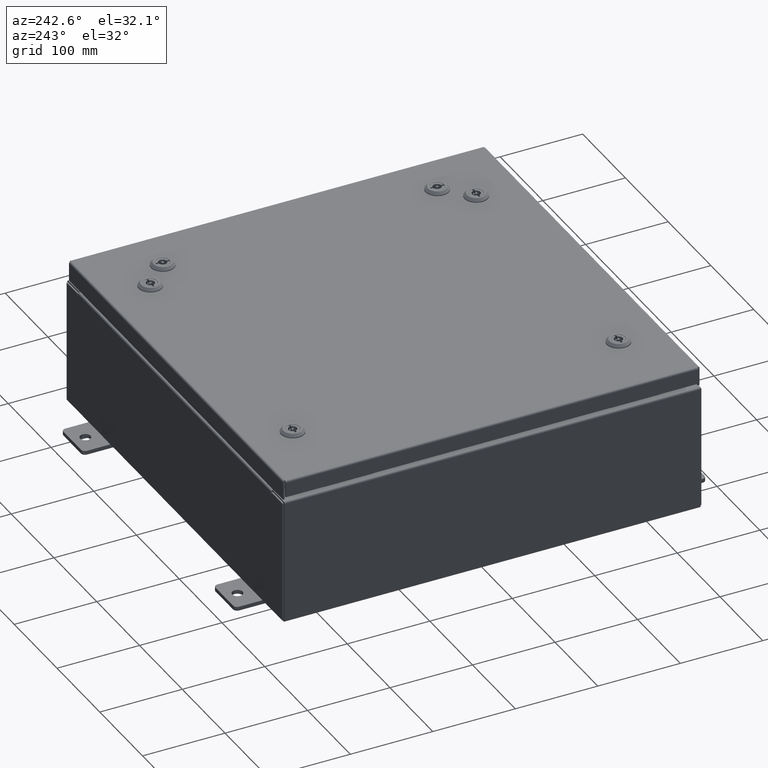
[diagram: clean part render]
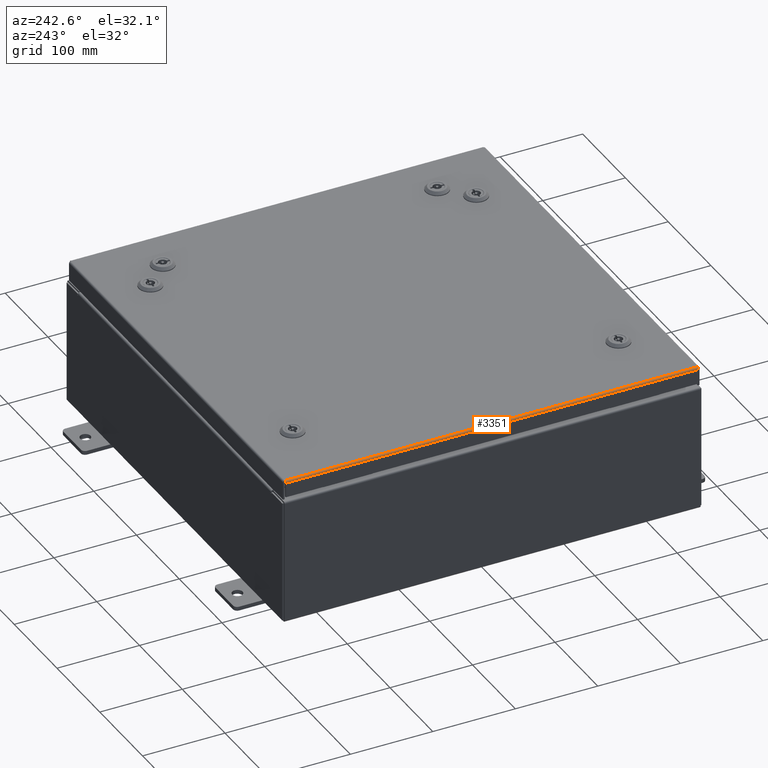
[diagram: same view with one face highlighted and labeled with its STEP entity id]
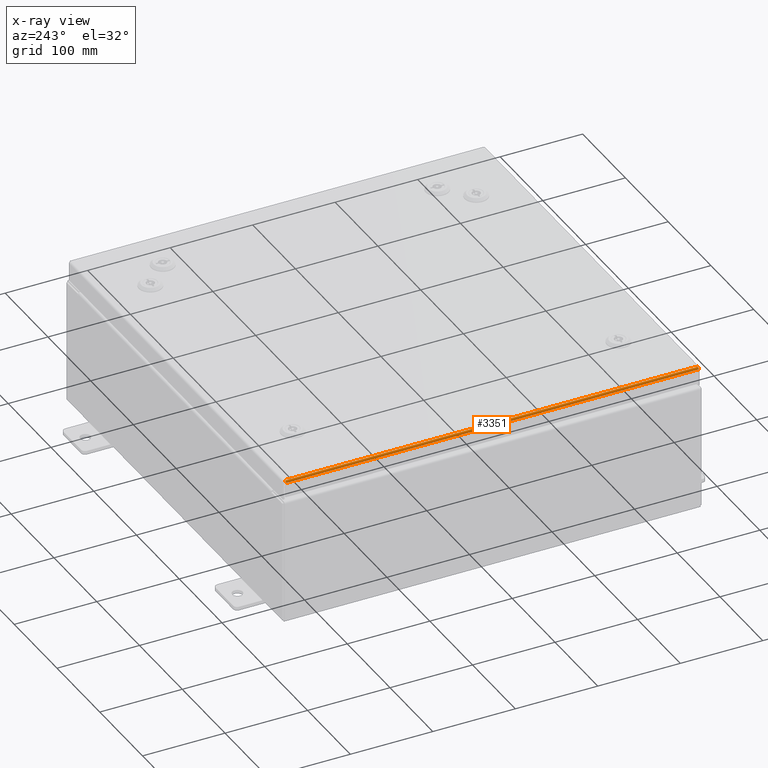
[diagram: x-ray of the same camera — body ghosted, the highlighted face saturated]
A machine part, auxiliary view. The second image highlights one B-rep face of the part: STEP entity #3351.
The next image is the same camera in x-ray: the body ghosted, the highlighted face saturated — about 0% of this face is hidden behind the body in this view.
In plain terms, the highlighted cylindrical surface (edge-blend (fillet) strip) has radius 2.2276 mm, axis along (0, 1, 0).
Its self-contained STEP definition (entity closure, byte-faithful):
#213 = CARTESIAN_POINT ( 'NONE',  ( -9.849800000000001900, 9.849799999999996600, -0.08770000000000036100 ) ) ;
#3351 = ADVANCED_FACE ( 'NONE', ( #33414 ), #45022, .T. ) ;
#3494 = CARTESIAN_POINT ( 'NONE',  ( -9.893967384578527200, 9.849419288125421400, -0.01106893374133366800 ) ) ;
#4638 = LINE ( 'NONE', #48779, #29277 ) ;
#4957 = DIRECTION ( 'NONE',  ( 1.099611771034679600E-016, -1.000000000000000000, -4.554220009055657300E-045 ) ) ;
#7468 = VERTEX_POINT ( 'NONE', #26355 ) ;
#8254 = CARTESIAN_POINT ( 'NONE',  ( -9.937499999999994700, 9.848753042344910100, -0.07622009684500738500 ) ) ;
#8466 = CARTESIAN_POINT ( 'NONE',  ( -9.861279903154994000, 9.849704822031354100, -2.441389057814461800E-015 ) ) ;
#8855 = EDGE_CURVE ( 'NONE', #56634, #7468, #55142, .T. ) ;
#12534 = ORIENTED_EDGE ( 'NONE', *, *, #35481, .T. ) ;
#14763 = B_SPLINE_CURVE_WITH_KNOTS ( 'NONE', 3,
 ( #52573, #8254, #57372, #28018, #62172, #32996, #3494, #38000, #8466, #42930 ),
 .UNSPECIFIED., .F., .F.,
 ( 4, 2, 2, 2, 4 ),
 ( 0.0000000000000000000, 0.2500000000000000000, 0.5000000000000000000, 0.7500000000000000000, 1.000000000000000000 ),
 .UNSPECIFIED. ) ;
#17278 = EDGE_LOOP ( 'NONE', ( #35861, #42561, #12534, #60048 ) ) ;
#22033 = DIRECTION ( 'NONE',  ( -1.000000000000000000, 0.0000000000000000000, 6.035297021350771100E-015 ) ) ;
#25392 = DIRECTION ( 'NONE',  ( -0.0000000000000000000, 1.000000000000000000, -0.0000000000000000000 ) ) ;
#26355 = CARTESIAN_POINT ( 'NONE',  ( -9.937500000000000000, -9.848657864376273000, -0.08769999999999977800 ) ) ;
#28018 = CARTESIAN_POINT ( 'NONE',  ( -9.926431066258667000, 9.849038576250844600, -0.04353261542147318600 ) ) ;
#28075 = VERTEX_POINT ( 'NONE', #31905 ) ;
#29125 = VERTEX_POINT ( 'NONE', #39795 ) ;
#29277 = VECTOR ( 'NONE', #53408, 39.37007874015748100 ) ;
#29497 = CARTESIAN_POINT ( 'NONE',  ( -9.937500000000000000, -9.937500000000001800, -0.08769999999999982000 ) ) ;
#29760 = EDGE_CURVE ( 'NONE', #28075, #56634, #4638, .T. ) ;
#31905 = CARTESIAN_POINT ( 'NONE',  ( -9.849800000000001900, 9.849799999999996600, -2.441589144337435400E-015 ) ) ;
#32996 = CARTESIAN_POINT ( 'NONE',  ( -9.903695747341799900, 9.849324110156775400, -0.01756921792168147900 ) ) ;
#33414 = FACE_OUTER_BOUND ( 'NONE', #17278, .T. ) ;
#35481 = EDGE_CURVE ( 'NONE', #29125, #7468, #39217, .T. ) ;
#35861 = ORIENTED_EDGE ( 'NONE', *, *, #29760, .F. ) ;
#38000 = CARTESIAN_POINT ( 'NONE',  ( -9.872755289458309500, 9.849609644062709900, -0.002282596256191084400 ) ) ;
#39217 = LINE ( 'NONE', #29497, #63508 ) ;
#39795 = CARTESIAN_POINT ( 'NONE',  ( -9.937500000000001800, 9.848657864376269400, -0.08769999999999982000 ) ) ;
#42561 = ORIENTED_EDGE ( 'NONE', *, *, #49981, .F. ) ;
#42930 = CARTESIAN_POINT ( 'NONE',  ( -9.849800000000001900, 9.849799999999996600, -2.441589144337435400E-015 ) ) ;
#45022 = CYLINDRICAL_SURFACE ( 'NONE', #57857, 0.08769999999999808500 ) ;
#48779 = CARTESIAN_POINT ( 'NONE',  ( -9.849800000000001900, 9.849799999999996600, -2.441589144337435400E-015 ) ) ;
#49540 = CARTESIAN_POINT ( 'NONE',  ( -9.937500000000000000, -9.848657864376273000, -0.08769999999999977800 ) ) ;
#49605 = CARTESIAN_POINT ( 'NONE',  ( -9.937500000000000000, -9.848753042344915400, -0.07622009684500741200 ) ) ;
#49754 = CARTESIAN_POINT ( 'NONE',  ( -9.935217403743813200, -9.848848220313561400, -0.06474471054169159100 ) ) ;
#49805 = CARTESIAN_POINT ( 'NONE',  ( -9.893967384578521900, -9.849419288125425000, -0.01106893374133366200 ) ) ;
#49823 = CARTESIAN_POINT ( 'NONE',  ( -9.872755289458313000, -9.849609644062715200, -0.002282596256191086200 ) ) ;
#49966 = CARTESIAN_POINT ( 'NONE',  ( -9.849799999999996600, -9.849800000000001900, -2.048885995248197400E-016 ) ) ;
#49981 = EDGE_CURVE ( 'NONE', #29125, #28075, #14763, .T. ) ;
#50104 = CARTESIAN_POINT ( 'NONE',  ( -9.861279903154994000, -9.849704822031359400, -2.441255666799145300E-015 ) ) ;
#52573 = CARTESIAN_POINT ( 'NONE',  ( -9.937500000000001800, 9.848657864376269400, -0.08769999999999982000 ) ) ;
#53408 = DIRECTION ( 'NONE',  ( 0.0000000000000000000, -1.000000000000000000, 0.0000000000000000000 ) ) ;
#54915 = CARTESIAN_POINT ( 'NONE',  ( -9.919930782078322900, -9.849133754219494100, -0.03380425265820132700 ) ) ;
#55142 = B_SPLINE_CURVE_WITH_KNOTS ( 'NONE', 3,
 ( #49966, #50104, #49823, #49805, #58059, #54915, #58181, #49754, #49605, #49540 ),
 .UNSPECIFIED., .F., .F.,
 ( 4, 2, 2, 2, 4 ),
 ( 0.0000000000000000000, 0.2500000000000000000, 0.5000000000000000000, 0.7500000000000000000, 1.000000000000000000 ),
 .UNSPECIFIED. ) ;
#55906 = CARTESIAN_POINT ( 'NONE',  ( -9.849799999999996600, -9.849800000000001900, -2.048885995248197400E-016 ) ) ;
#56634 = VERTEX_POINT ( 'NONE', #55906 ) ;
#57372 = CARTESIAN_POINT ( 'NONE',  ( -9.935217403743813200, 9.848848220313559700, -0.06474471054169157700 ) ) ;
#57857 = AXIS2_PLACEMENT_3D ( 'NONE', #213, #25392, #22033 ) ;
#58059 = CARTESIAN_POINT ( 'NONE',  ( -9.903695747341799900, -9.849324110156782600, -0.01756921792168147900 ) ) ;
#58181 = CARTESIAN_POINT ( 'NONE',  ( -9.926431066258668800, -9.849038576250846300, -0.04353261542147320700 ) ) ;
#60048 = ORIENTED_EDGE ( 'NONE', *, *, #8855, .F. ) ;
#62172 = CARTESIAN_POINT ( 'NONE',  ( -9.919930782078322900, 9.849133754219488800, -0.03380425265820133400 ) ) ;
#63508 = VECTOR ( 'NONE', #4957, 39.37007874015748100 ) ;